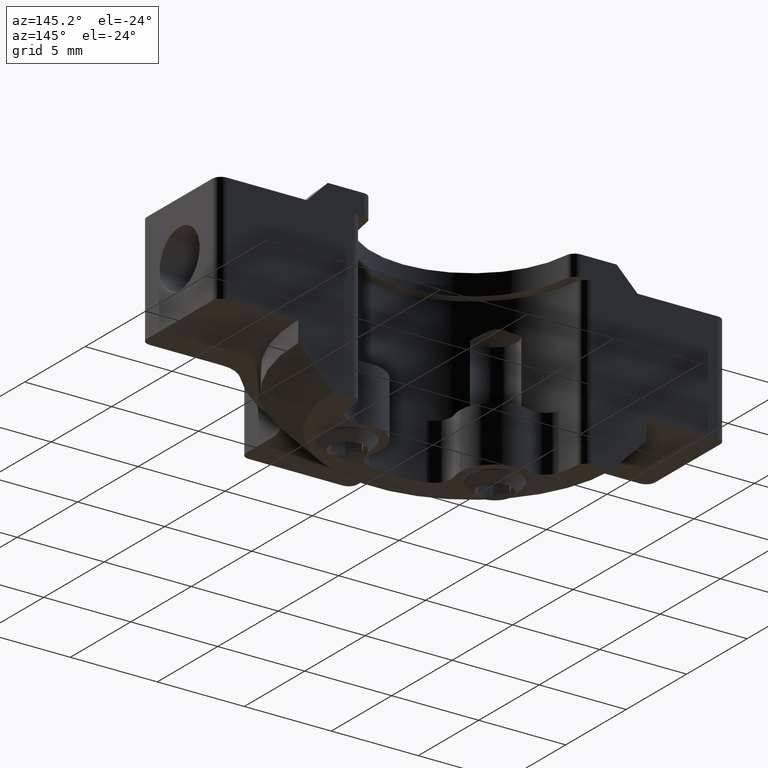
[diagram: clean part render]
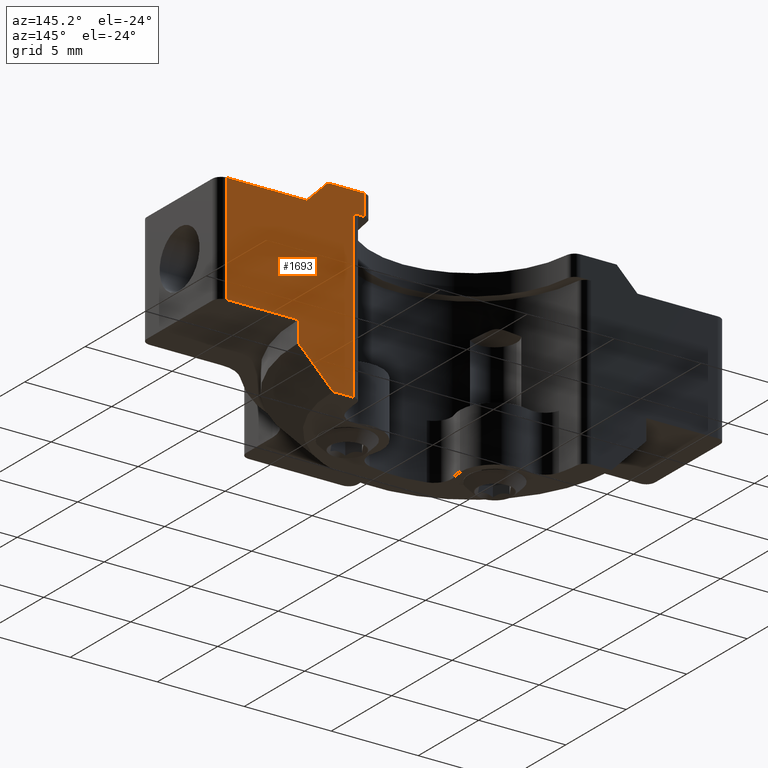
[diagram: same view with one face highlighted and labeled with its STEP entity id]
A machine part, auxiliary view. The second image highlights one B-rep face of the part: STEP entity #1693.
In plain terms, the highlighted planar face has unit normal (0, -1, 0).
Its self-contained STEP definition (entity closure, byte-faithful):
#49 = VECTOR ( 'NONE', #1628, 999.9999999999998863 ) ;
#138 = FACE_OUTER_BOUND ( 'NONE', #2696, .T. ) ;
#142 = VERTEX_POINT ( 'NONE', #145 ) ;
#145 = CARTESIAN_POINT ( 'NONE',  ( 7.583520289026442818, 5.488821372047168801, 33.35000000000000142 ) ) ;
#186 = VERTEX_POINT ( 'NONE', #2496 ) ;
#226 = LINE ( 'NONE', #1473, #2498 ) ;
#242 = CARTESIAN_POINT ( 'NONE',  ( 12.68352028902644335, 5.488821372047168801, 33.35000000000000142 ) ) ;
#290 = LINE ( 'NONE', #1296, #1270 ) ;
#333 = LINE ( 'NONE', #559, #2754 ) ;
#356 = ORIENTED_EDGE ( 'NONE', *, *, #3027, .T. ) ;
#399 = VERTEX_POINT ( 'NONE', #910 ) ;
#435 = DIRECTION ( 'NONE',  ( -1.000000000000000000, -0.000000000000000000, -0.000000000000000000 ) ) ;
#443 = LINE ( 'NONE', #3192, #2171 ) ;
#559 = CARTESIAN_POINT ( 'NONE',  ( -16.51647971097355949, 5.488821372047168801, 33.35000000000000142 ) ) ;
#593 = VERTEX_POINT ( 'NONE', #984 ) ;
#601 = LINE ( 'NONE', #2992, #801 ) ;
#735 = VECTOR ( 'NONE', #1019, 1000.000000000000000 ) ;
#801 = VECTOR ( 'NONE', #952, 999.9999999999998863 ) ;
#820 = EDGE_CURVE ( 'NONE', #593, #3245, #1587, .T. ) ;
#822 = LINE ( 'NONE', #1833, #49 ) ;
#878 = EDGE_CURVE ( 'NONE', #2055, #1325, #932, .T. ) ;
#893 = VECTOR ( 'NONE', #2184, 1000.000000000000000 ) ;
#910 = CARTESIAN_POINT ( 'NONE',  ( 4.313488186214997633, 5.488821372047168801, 34.55000000000000426 ) ) ;
#929 = CARTESIAN_POINT ( 'NONE',  ( 12.18352028902644335, 5.488821372047168801, 27.05000000000000426 ) ) ;
#932 = LINE ( 'NONE', #2713, #893 ) ;
#952 = DIRECTION ( 'NONE',  ( 0.7071067811865486830, -0.000000000000000000, -0.7071067811865464625 ) ) ;
#962 = VERTEX_POINT ( 'NONE', #2464 ) ;
#984 = CARTESIAN_POINT ( 'NONE',  ( 4.915247742606537962, 5.488821372047168801, 23.85000000000000142 ) ) ;
#986 = DIRECTION ( 'NONE',  ( -1.000000000000000000, 0.000000000000000000, 0.000000000000000000 ) ) ;
#1019 = DIRECTION ( 'NONE',  ( -0.000000000000000000, 0.000000000000000000, 1.000000000000000000 ) ) ;
#1060 = ORIENTED_EDGE ( 'NONE', *, *, #1814, .F. ) ;
#1093 = VERTEX_POINT ( 'NONE', #1730 ) ;
#1116 = VERTEX_POINT ( 'NONE', #2855 ) ;
#1173 = DIRECTION ( 'NONE',  ( 0.000000000000000000, -1.000000000000000000, 0.000000000000000000 ) ) ;
#1251 = DIRECTION ( 'NONE',  ( -1.000000000000000000, -0.000000000000000000, -0.000000000000000000 ) ) ;
#1270 = VECTOR ( 'NONE', #1536, 1000.000000000000000 ) ;
#1273 = CARTESIAN_POINT ( 'NONE',  ( 12.18352028902644335, 5.488821372047168801, 33.35000000000000142 ) ) ;
#1296 = CARTESIAN_POINT ( 'NONE',  ( 8.083520289026438377, 5.488821372047170577, 27.05000000000000426 ) ) ;
#1325 = VERTEX_POINT ( 'NONE', #929 ) ;
#1372 = DIRECTION ( 'NONE',  ( 0.000000000000000000, -0.000000000000000000, -1.000000000000000000 ) ) ;
#1422 = CARTESIAN_POINT ( 'NONE',  ( -16.51647971097355949, 5.488821372047168801, 34.55000000000000426 ) ) ;
#1456 = ORIENTED_EDGE ( 'NONE', *, *, #2414, .T. ) ;
#1473 = CARTESIAN_POINT ( 'NONE',  ( -16.51647971097355949, 5.488821372047168801, 34.55000000000000426 ) ) ;
#1477 = ORIENTED_EDGE ( 'NONE', *, *, #2561, .T. ) ;
#1511 = ORIENTED_EDGE ( 'NONE', *, *, #878, .T. ) ;
#1536 = DIRECTION ( 'NONE',  ( -0.000000000000000000, -0.000000000000000000, -1.000000000000000000 ) ) ;
#1553 = ORIENTED_EDGE ( 'NONE', *, *, #2435, .T. ) ;
#1587 = LINE ( 'NONE', #2427, #2898 ) ;
#1602 = EDGE_CURVE ( 'NONE', #3245, #186, #333, .T. ) ;
#1628 = DIRECTION ( 'NONE',  ( -0.7071067811865489050, -0.000000000000000000, -0.7071067811865462405 ) ) ;
#1671 = CARTESIAN_POINT ( 'NONE',  ( 8.083520289026438377, 5.488821372047170577, 25.85000000000000497 ) ) ;
#1681 = DIRECTION ( 'NONE',  ( 1.000000000000000000, -0.000000000000000000, -0.000000000000000000 ) ) ;
#1693 = ADVANCED_FACE ( 'NONE', ( #138 ), #2404, .F. ) ;
#1730 = CARTESIAN_POINT ( 'NONE',  ( 6.383520289026439976, 5.488821372047168801, 34.55000000000000426 ) ) ;
#1741 = VECTOR ( 'NONE', #986, 1000.000000000000000 ) ;
#1814 = EDGE_CURVE ( 'NONE', #2055, #142, #2490, .T. ) ;
#1817 = ORIENTED_EDGE ( 'NONE', *, *, #1602, .T. ) ;
#1833 = CARTESIAN_POINT ( 'NONE',  ( -1.916479710973558293, 5.488821372047168801, 15.85000000000004405 ) ) ;
#1836 = LINE ( 'NONE', #3060, #735 ) ;
#1929 = CARTESIAN_POINT ( 'NONE',  ( -16.51647971097355949, 5.488821372047168801, 23.85000000000000142 ) ) ;
#1999 = EDGE_CURVE ( 'NONE', #186, #399, #1836, .T. ) ;
#2055 = VERTEX_POINT ( 'NONE', #1273 ) ;
#2090 = ORIENTED_EDGE ( 'NONE', *, *, #1999, .T. ) ;
#2171 = VECTOR ( 'NONE', #1681, 1000.000000000000000 ) ;
#2176 = VECTOR ( 'NONE', #435, 1000.000000000000000 ) ;
#2184 = DIRECTION ( 'NONE',  ( 0.000000000000000000, 0.000000000000000000, -1.000000000000000000 ) ) ;
#2268 = CARTESIAN_POINT ( 'NONE',  ( 4.915247742606537962, 5.488821372047168801, 33.35000000000000142 ) ) ;
#2317 = ORIENTED_EDGE ( 'NONE', *, *, #2679, .F. ) ;
#2391 = ORIENTED_EDGE ( 'NONE', *, *, #3252, .F. ) ;
#2404 = PLANE ( 'NONE',  #2909 ) ;
#2414 = EDGE_CURVE ( 'NONE', #1116, #3110, #290, .T. ) ;
#2427 = CARTESIAN_POINT ( 'NONE',  ( 4.915247742606538850, 5.488821372047168801, 33.35000000000000142 ) ) ;
#2435 = EDGE_CURVE ( 'NONE', #3110, #962, #822, .T. ) ;
#2464 = CARTESIAN_POINT ( 'NONE',  ( 6.083520289026427719, 5.488821372047168801, 23.85000000000000142 ) ) ;
#2474 = ORIENTED_EDGE ( 'NONE', *, *, #820, .T. ) ;
#2490 = LINE ( 'NONE', #242, #1741 ) ;
#2496 = CARTESIAN_POINT ( 'NONE',  ( 4.313488186214997633, 5.488821372047168801, 33.35000000000000142 ) ) ;
#2498 = VECTOR ( 'NONE', #1251, 1000.000000000000000 ) ;
#2561 = EDGE_CURVE ( 'NONE', #1093, #142, #601, .T. ) ;
#2679 = EDGE_CURVE ( 'NONE', #1116, #1325, #443, .T. ) ;
#2691 = DIRECTION ( 'NONE',  ( 0.000000000000000000, 0.000000000000000000, 1.000000000000000000 ) ) ;
#2696 = EDGE_LOOP ( 'NONE', ( #356, #2474, #1817, #2090, #2391, #1477, #1060, #1511, #2317, #1456, #1553 ) ) ;
#2703 = LINE ( 'NONE', #1929, #2176 ) ;
#2713 = CARTESIAN_POINT ( 'NONE',  ( 12.18352028902644335, 5.488821372047168801, 34.55000000000000426 ) ) ;
#2754 = VECTOR ( 'NONE', #3067, 1000.000000000000000 ) ;
#2855 = CARTESIAN_POINT ( 'NONE',  ( 8.083520289026438377, 5.488821372047170577, 27.05000000000000426 ) ) ;
#2898 = VECTOR ( 'NONE', #2691, 1000.000000000000000 ) ;
#2909 = AXIS2_PLACEMENT_3D ( 'NONE', #1422, #1173, #1372 ) ;
#2992 = CARTESIAN_POINT ( 'NONE',  ( -1.916479710973556516, 5.488821372047168801, 42.84999999999998010 ) ) ;
#3027 = EDGE_CURVE ( 'NONE', #962, #593, #2703, .T. ) ;
#3060 = CARTESIAN_POINT ( 'NONE',  ( 4.313488186214997633, 5.488821372047168801, 34.55000000000000426 ) ) ;
#3067 = DIRECTION ( 'NONE',  ( -1.000000000000000000, 0.000000000000000000, 0.000000000000000000 ) ) ;
#3110 = VERTEX_POINT ( 'NONE', #1671 ) ;
#3192 = CARTESIAN_POINT ( 'NONE',  ( 12.68352028902644335, 5.488821372047168801, 27.05000000000000426 ) ) ;
#3245 = VERTEX_POINT ( 'NONE', #2268 ) ;
#3252 = EDGE_CURVE ( 'NONE', #1093, #399, #226, .T. ) ;